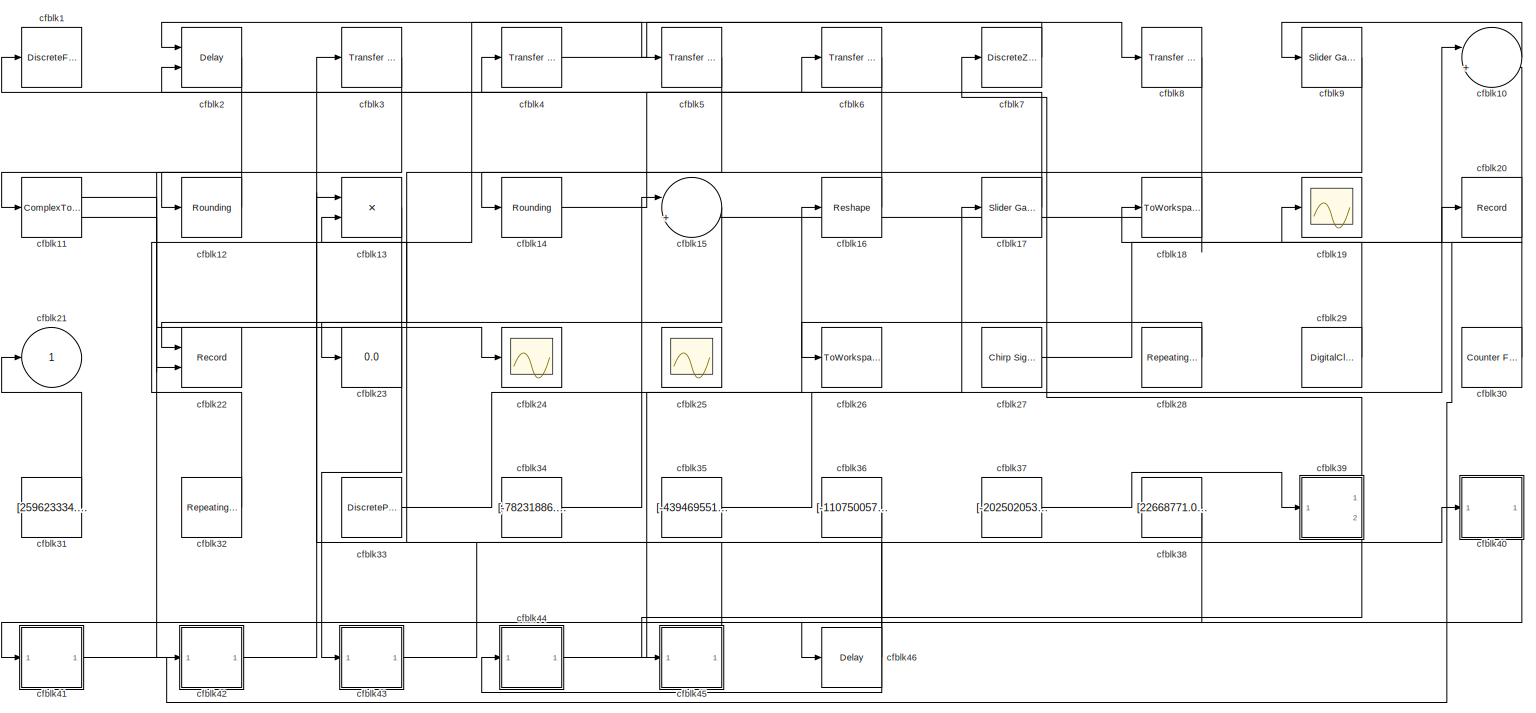
[diagram: root canvas - part 1/1, most of the canvas]
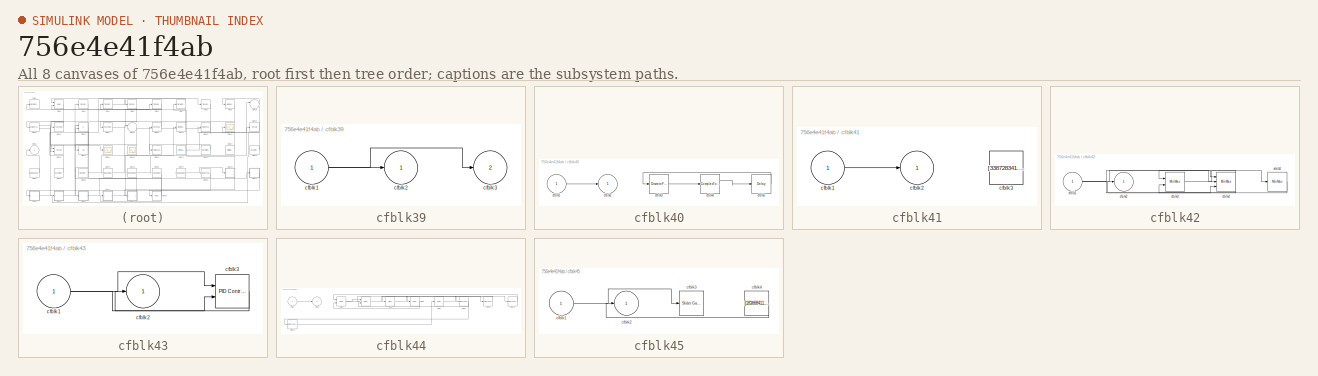
[diagram: thumbnail index - all 8 canvases of the model, root first then tree order]
MODEL slx_756e4e41f4ab
KIND model
CONFIG AbsTol = auto
CONFIG EnableMultiTasking = off
CONFIG FixedStep = auto
CONFIG MaxStep = auto
CONFIG MinStep = auto
CONFIG RelTol = 1e-3
CONFIG SampleTimeConstraint = Unconstrained
CONFIG SolverName = VariableStepAuto
CONFIG StartTime = 0.0
CONFIG StopTime = 10.0
BLOCK [DiscreteFilter] cfblk1
  InputPortMap = u0
  Ports = [1, 1]
  SampleTime = 1
BLOCK [Sum] cfblk10
  Inputs = |++
  Ports = [2, 1]
BLOCK [ComplexToRealImag] cfblk11
  Ports = [1, 2]
BLOCK [Rounding] cfblk12
BLOCK [Product] cfblk13
  Ports = [2, 1]
BLOCK [Rounding] cfblk14
BLOCK [Sum] cfblk15
  Inputs = |++
  Ports = [2, 1]
BLOCK [Reshape] cfblk16
  Ports = [1, 1]
BLOCK [Reference] cfblk17  REF=simulink/Math
Operations/Slider
Gain
  Ports = [1, 1]
  SourceBlock = simulink/Math\nOperations/Slider\nGain
  SourceProductBaseCode = SL
  SourceType = Slider Gain
BLOCK [ToWorkspace] cfblk18
  FixptAsFi = on
  MaxDataPoints = inf
  Ports = [1]
  SampleTime = -1
  SaveFormat = Timeseries
  VariableName = okxblnd
BLOCK [Scope] cfblk19
  Floating = off
  NumInputPorts = 1
  Ports = [1]
BLOCK [Delay] cfblk2
  DelayLengthSource = Input port
  InputPortMap = u0,p1
  Ports = [2, 1]
  SampleTime = 1
BLOCK [Record] cfblk20
  FileSettingsInternal = {"entries":[{"content":{"excelSettings":{"content":{},"type":"Streamout.ExcelSettings"}},"type":"Streamout.FileSettingStorage","uuid":"17ea2f45-68e3-4bb9-a5b8-5693fa28c361"}],"packageUris":["http://schema.mathworks.com/mf0/streamout_blocks/R2020a"],"version":"1.0"}
  Ports = [1]
  SignalsInternal = {"entries":[{"content":{"signals":[{"content":{"blockPath":["sampleModel17/cfblk20"],"channel":[],"dimensions":[1],"domain":"sampleModel17/cfblk20","lineColor":"#ff6929","plots":[1],"port":1,"sid":[""],"signalID":688,"signalName":"cfblk27"},"type":"RecordBlkView.Signal","uuid":"ff02919d-e522-4283-8259-36fde8ee0fff"}]},"type":"RecordBlkView.InputSignals","uuid":"34ed7dc9-4139-4f60-96ec-8a348516208e...<+94ch>
  VisualizationBindings = {"sparklinesplugin":{"info":[{"bindingParametersList":[],"subplotID":1}]}}
BLOCK [Outport] cfblk21
BLOCK [Record] cfblk22
  CompatibilityTag = XY
  FileSettingsInternal = {"entries":[{"content":{"excelSettings":{"content":{},"type":"Streamout.ExcelSettings"}},"type":"Streamout.FileSettingStorage","uuid":"5055ea9d-e812-413b-8fb1-7f1005ad629c"}],"packageUris":["http://schema.mathworks.com/mf0/streamout_blocks/R2020a"],"version":"1.0"}
  Layout = [1 1]
  Ports = [2]
  SignalsInternal = {"entries":[{"content":{"signals":[{"content":{"blockPath":["sampleModel17/cfblk22"],"channel":[],"dimensions":[1],"domain":"sampleModel17/cfblk22","lineColor":"#a2142f","plots":[1],"port":1,"sid":[""],"signalID":680,"signalName":"cfblk15"},"type":"RecordBlkView.Signal","uuid":"78bbdca0-42b0-46e0-b451-675e35c684db"},{"content":{"blockPath":["sampleModel17/cfblk22"],"channel":[],"dimensions":[1],"d...<+376ch>
  VisualizationBindings = {"xyplotplugin":{"info":[{"series":[{"bindingParametersList":[{"parameter":"X-Axis","signalID":680,"signalName":"cfblk15"},{"parameter":"Y-Axis","signalID":684,"signalName":"cfblk3"}],"seriesID":51880}],"subplotID":1}]}}
BLOCK [Display] cfblk23
  Decimation = 1
  Ports = [1]
BLOCK [Scope] cfblk24
  Floating = off
  NumInputPorts = 1
  Ports = [1]
BLOCK [Scope] cfblk25
  Floating = on
  NumInputPorts = 1
  Ports = []
BLOCK [ToWorkspace] cfblk26
  FixptAsFi = on
  MaxDataPoints = inf
  Ports = [1]
  SampleTime = -1
  SaveFormat = Timeseries
  VariableName = owfebra
BLOCK [Reference] cfblk27  REF=simulink/Sources/Chirp Signal
  Ports = [0, 1]
  SourceBlock = simulink/Sources/Chirp Signal
  SourceProductBaseCode = SL
  SourceType = chirp
BLOCK [Reference] cfblk28  REF=simulink/Sources/Repeating
Sequence
Stair
  Ports = [0, 1]
  SourceBlock = simulink/Sources/Repeating\nSequence\nStair
  SourceProductBaseCode = SL
  SourceType = Repeating Sequence Stair
BLOCK [DigitalClock] cfblk29
BLOCK [Reference] cfblk3  REF=simulink/Discrete/Transfer Fcn
Real Zero
  Ports = [1, 1]
  SourceBlock = simulink/Discrete/Transfer Fcn\nReal Zero
  SourceProductBaseCode = SL
  SourceType = Transfer Fcn Real Zero
BLOCK [Reference] cfblk30  REF=simulink/Sources/Counter
Free-Running
  Ports = [0, 1]
  SourceBlock = simulink/Sources/Counter\nFree-Running
  SourceProductBaseCode = SL
  SourceType = Counter Free-Running
BLOCK [Constant] cfblk31
  SampleTime = 1
  Value = [259623334.051098]
BLOCK [Reference] cfblk32  REF=simulink/Sources/Repeating
Sequence
Stair
  Ports = [0, 1]
  SourceBlock = simulink/Sources/Repeating\nSequence\nStair
  SourceProductBaseCode = SL
  SourceType = Repeating Sequence Stair
BLOCK [DiscretePulseGenerator] cfblk33
  Amplitude = [-27379613.426073]
  Period = [67951749.553944]
  PhaseDelay = [7.000000]
  Ports = [0, 1]
  PulseType = Time based
  PulseWidth = 5
BLOCK [Constant] cfblk34
  SampleTime = 1
  Value = [-78231886.507901]
BLOCK [Constant] cfblk35
  SampleTime = 1
  Value = [-439469551.534272]
BLOCK [Constant] cfblk36
  SampleTime = 1
  Value = [-110750057.907486]
BLOCK [Constant] cfblk37
  SampleTime = 1
  Value = [-202502053.045638]
BLOCK [Constant] cfblk38
  SampleTime = 1
  Value = [22668771.047668]
BLOCK [SubSystem] cfblk39
  Ports = [1, 2]
  RequestExecContextInheritance = off
BLOCK [Inport] cfblk39/cfblk1
BLOCK [Outport] cfblk39/cfblk2
BLOCK [Outport] cfblk39/cfblk3
  Port = 2
BLOCK [Reference] cfblk4  REF=simulink/Discrete/Transfer Fcn
First Order
  Ports = [1, 1]
  SourceBlock = simulink/Discrete/Transfer Fcn\nFirst Order
  SourceProductBaseCode = SL
  SourceType = First Order Transfer Fcn
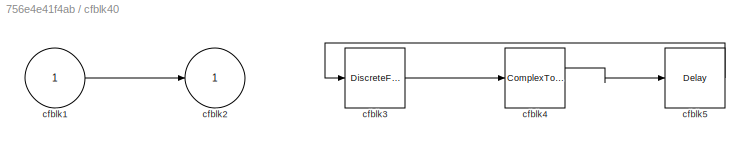
BLOCK [SubSystem] cfblk40
  Ports = [1, 1]
  RequestExecContextInheritance = off
BLOCK [Inport] cfblk40/cfblk1
BLOCK [Outport] cfblk40/cfblk2
BLOCK [DiscreteFir] cfblk40/cfblk3
  InputPortMap = u0
  OutputPortMap = o0
  Ports = [1, 1]
  SampleTime = 1
BLOCK [ComplexToMagnitudeAngle] cfblk40/cfblk4
  Ports = [1, 2]
BLOCK [Delay] cfblk40/cfblk5
  InputPortMap = u0
  Ports = [1, 1]
  SampleTime = 1
BLOCK [SubSystem] cfblk41
  Ports = [1, 1]
  RequestExecContextInheritance = off
BLOCK [Inport] cfblk41/cfblk1
BLOCK [Outport] cfblk41/cfblk2
BLOCK [Constant] cfblk41/cfblk3
  SampleTime = 1
  Value = [338728341.108815]
BLOCK [SubSystem] cfblk42
  Ports = [1, 1]
  RequestExecContextInheritance = off
BLOCK [Inport] cfblk42/cfblk1
BLOCK [Outport] cfblk42/cfblk2
BLOCK [MinMax] cfblk42/cfblk3
  Function = max
  Inputs = 2
  Ports = [2, 1]
BLOCK [MinMax] cfblk42/cfblk4
  Inputs = 3
  Ports = [3, 1]
BLOCK [MinMax] cfblk42/cfblk5
  Ports = [1, 1]
BLOCK [SubSystem] cfblk43
  Ports = [1, 1]
  RequestExecContextInheritance = off
BLOCK [Inport] cfblk43/cfblk1
BLOCK [Outport] cfblk43/cfblk2
BLOCK [Reference] cfblk43/cfblk3  REF=slpidlib/PID Controller (2DOF)
  Ports = [2, 1]
  SourceBlock = slpidlib/PID Controller (2DOF)
  SourceProductBaseCode = SL
  SourceType = PID 2dof
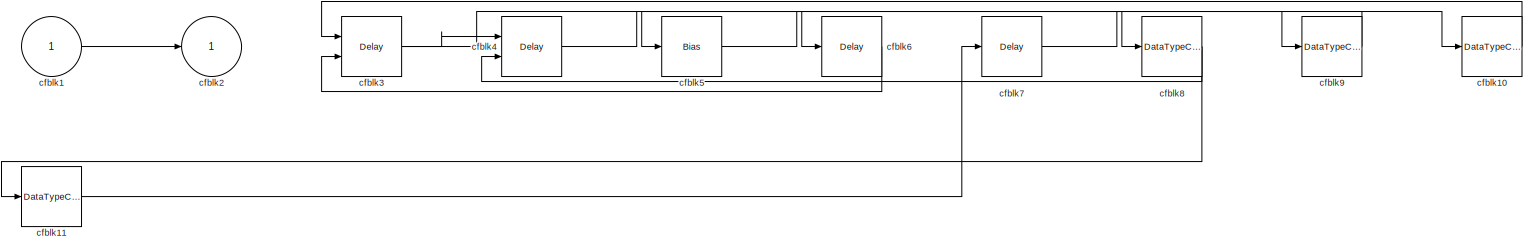
[diagram: cfblk44 - part 1/1, most of the canvas]
BLOCK [SubSystem] cfblk44
  Ports = [1, 1]
  RequestExecContextInheritance = off
BLOCK [Inport] cfblk44/cfblk1
BLOCK [DataTypeConversion] cfblk44/cfblk10
  RndMeth = Floor
  SaturateOnIntegerOverflow = off
BLOCK [DataTypeConversion] cfblk44/cfblk11
  RndMeth = Floor
  SaturateOnIntegerOverflow = off
BLOCK [Outport] cfblk44/cfblk2
BLOCK [Delay] cfblk44/cfblk3
  InputPortMap = u0,e6
  Ports = [2, 1]
  SampleTime = 1
  ShowEnablePort = on
BLOCK [Delay] cfblk44/cfblk4
  DelayLengthSource = Input port
  InputPortMap = u0,p1
  Ports = [2, 1]
  SampleTime = 1
BLOCK [Bias] cfblk44/cfblk5
  Bias = [909353169.805887]
  SaturateOnIntegerOverflow = off
BLOCK [Delay] cfblk44/cfblk6
  InputPortMap = u0
  Ports = [1, 1]
  SampleTime = 1
BLOCK [Delay] cfblk44/cfblk7
  InputPortMap = u0
  Ports = [1, 1]
  SampleTime = 1
BLOCK [DataTypeConversion] cfblk44/cfblk8
  RndMeth = Floor
  SaturateOnIntegerOverflow = off
BLOCK [DataTypeConversion] cfblk44/cfblk9
  RndMeth = Floor
  SaturateOnIntegerOverflow = off
BLOCK [SubSystem] cfblk45
  Ports = [1, 1]
  RequestExecContextInheritance = off
BLOCK [Inport] cfblk45/cfblk1
BLOCK [Outport] cfblk45/cfblk2
BLOCK [Reference] cfblk45/cfblk3  REF=simulink/Math
Operations/Slider
Gain
  Ports = [1, 1]
  SourceBlock = simulink/Math\nOperations/Slider\nGain
  SourceProductBaseCode = SL
  SourceType = Slider Gain
BLOCK [Constant] cfblk45/cfblk4
  SampleTime = 1
  Value = [183668411.357845]
BLOCK [Delay] cfblk46
  InputPortMap = u0
  Ports = [1, 1]
  SampleTime = 1
BLOCK [Reference] cfblk5  REF=simulink/Discrete/Transfer Fcn
Real Zero
  Ports = [1, 1]
  SourceBlock = simulink/Discrete/Transfer Fcn\nReal Zero
  SourceProductBaseCode = SL
  SourceType = Transfer Fcn Real Zero
BLOCK [Reference] cfblk6  REF=simulink/Discrete/Transfer Fcn
Real Zero
  Ports = [1, 1]
  SourceBlock = simulink/Discrete/Transfer Fcn\nReal Zero
  SourceProductBaseCode = SL
  SourceType = Transfer Fcn Real Zero
BLOCK [DiscreteZeroPole] cfblk7
  Gain = 1
  Poles = [0 0.5]
BLOCK [Reference] cfblk8  REF=simulink/Discrete/Transfer Fcn
Real Zero
  Ports = [1, 1]
  SourceBlock = simulink/Discrete/Transfer Fcn\nReal Zero
  SourceProductBaseCode = SL
  SourceType = Transfer Fcn Real Zero
BLOCK [Reference] cfblk9  REF=simulink/Math
Operations/Slider
Gain
  Ports = [1, 1]
  SourceBlock = simulink/Math\nOperations/Slider\nGain
  SourceProductBaseCode = SL
  SourceType = Slider Gain
LINE cfblk10:1 -> cfblk9:1
LINE cfblk11:1 -> cfblk24:1
LINE cfblk11:2 -> cfblk42:1
LINE cfblk12:1 -> cfblk11:1
LINE cfblk13:1 -> cfblk43:1
LINE cfblk14:1 -> cfblk6:1
LINE cfblk15:1 -> cfblk22:1
LINE cfblk16:1 -> cfblk2:2
LINE cfblk17:1 -> cfblk1:1
LINE cfblk27:1 -> cfblk20:1
LINE cfblk28:1 -> cfblk26:1
LINE cfblk29:1 -> cfblk19:1
LINE cfblk2:1 -> cfblk12:1
LINE cfblk30:1 -> cfblk18:1
LINE cfblk31:1 -> cfblk21:1
LINE cfblk32:1 -> cfblk5:1
LINE cfblk33:1 -> cfblk17:1
LINE cfblk34:1 -> cfblk15:1
LINE cfblk35:1 -> cfblk10:1
LINE cfblk36:1 -> cfblk44:1
LINE cfblk37:1 -> cfblk39:1
LINE cfblk38:1 -> cfblk41:1
NET cfblk39/cfblk1:1 -> cfblk39/cfblk2:1, cfblk39/cfblk3:1
LINE cfblk39:1 -> cfblk7:1
LINE cfblk39:2 -> cfblk45:1
LINE cfblk3:1 -> cfblk22:2
LINE cfblk40/cfblk1:1 -> cfblk40/cfblk2:1
LINE cfblk40/cfblk3:1 -> cfblk40/cfblk4:1
LINE cfblk40/cfblk4:1 -> cfblk40/cfblk5:1
LINE cfblk40/cfblk5:1 -> cfblk40/cfblk3:1
LINE cfblk40:1 -> cfblk46:1
LINE cfblk41/cfblk1:1 -> cfblk41/cfblk2:1
LINE cfblk41:1 -> cfblk10:2
NET cfblk42/cfblk1:1 -> cfblk42/cfblk4:1, cfblk42/cfblk4:2, cfblk42/cfblk4:3
LINE cfblk42/cfblk3:1 -> cfblk42/cfblk5:1
NET cfblk42/cfblk4:1 -> cfblk42/cfblk3:1, cfblk42/cfblk3:2
LINE cfblk42/cfblk5:1 -> cfblk42/cfblk2:1
LINE cfblk42:1 -> cfblk3:1
NET cfblk43/cfblk1:1 -> cfblk43/cfblk3:1, cfblk43/cfblk3:2
LINE cfblk43/cfblk3:1 -> cfblk43/cfblk2:1
LINE cfblk43:1 -> cfblk40:1
LINE cfblk44/cfblk10:1 -> cfblk44/cfblk3:1
LINE cfblk44/cfblk11:1 -> cfblk44/cfblk7:1
LINE cfblk44/cfblk1:1 -> cfblk44/cfblk2:1
NET cfblk44/cfblk3:1 -> cfblk44/cfblk4:1, cfblk44/cfblk9:1
LINE cfblk44/cfblk4:1 -> cfblk44/cfblk6:1
LINE cfblk44/cfblk5:1 -> cfblk44/cfblk8:1
LINE cfblk44/cfblk6:1 -> cfblk44/cfblk3:2
LINE cfblk44/cfblk7:1 -> cfblk44/cfblk10:1
NET cfblk44/cfblk8:1 -> cfblk44/cfblk11:1, cfblk44/cfblk4:2
LINE cfblk44/cfblk9:1 -> cfblk44/cfblk5:1
LINE cfblk44:1 -> cfblk16:1
LINE cfblk45/cfblk1:1 -> cfblk45/cfblk3:1
LINE cfblk45/cfblk4:1 -> cfblk45/cfblk2:1
LINE cfblk45:1 -> cfblk13:2
LINE cfblk46:1 -> cfblk13:1
LINE cfblk4:1 -> cfblk8:1
LINE cfblk5:1 -> cfblk23:1
LINE cfblk6:1 -> cfblk4:1
LINE cfblk7:1 -> cfblk2:1
LINE cfblk8:1 -> cfblk15:2
LINE cfblk9:1 -> cfblk14:1
note: NET lines group one-source signal fan-out (src -> all destinations, sorted); 1:1 wires keep LINE
